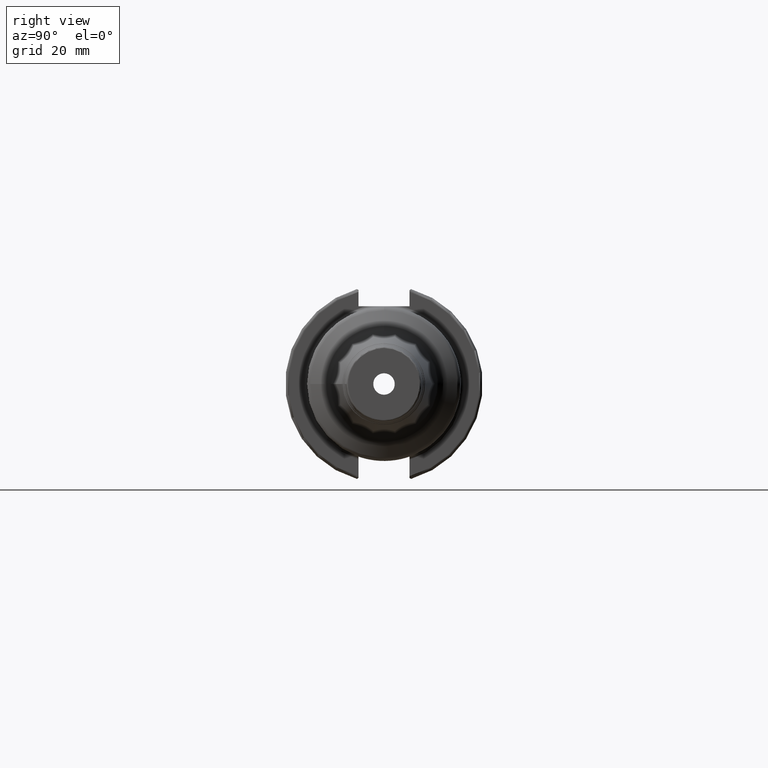
[diagram: clean part render]
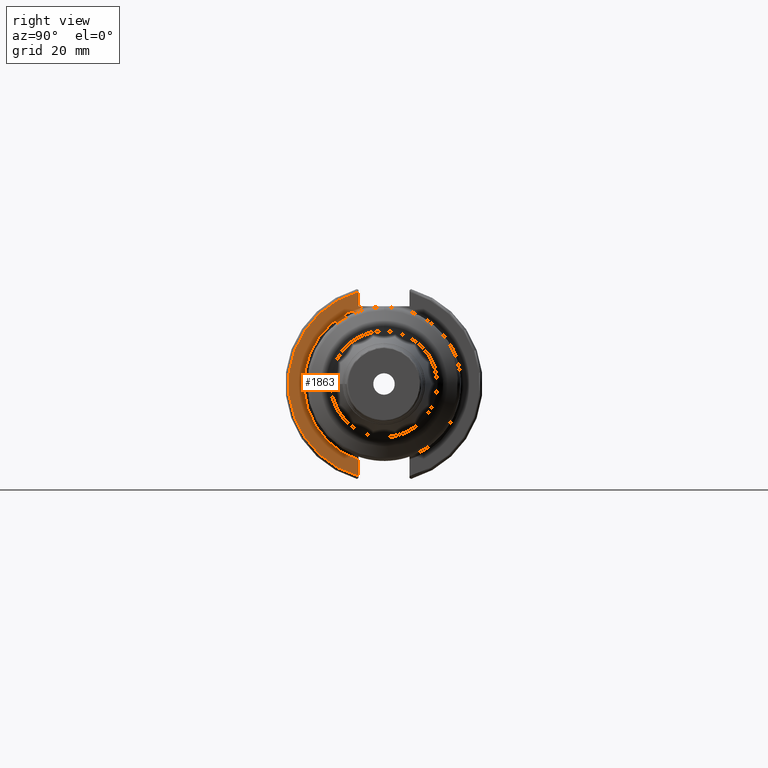
[diagram: same view with one face highlighted and labeled with its STEP entity id]
A machine part, right view. The second image highlights one B-rep face of the part: STEP entity #1863.
In plain terms, the highlighted planar face has unit normal (1, 0, 0).
Its self-contained STEP definition (entity closure, byte-faithful):
#134=PLANE('',#2045);
#177=LINE('',#2994,#272);
#178=LINE('',#2996,#273);
#179=LINE('',#2999,#274);
#272=VECTOR('',#2384,10.);
#273=VECTOR('',#2385,10.);
#274=VECTOR('',#2388,10.);
#402=FACE_OUTER_BOUND('',#511,.T.);
#511=EDGE_LOOP('',(#1349,#1350,#1351,#1352,#1353));
#660=CIRCLE('',#2041,25.75);
#664=CIRCLE('',#2046,30.75);
#780=VERTEX_POINT('',#2951);
#782=VERTEX_POINT('',#2963);
#787=VERTEX_POINT('',#2993);
#788=VERTEX_POINT('',#2995);
#789=VERTEX_POINT('',#2997);
#994=EDGE_CURVE('',#780,#782,#660,.T.);
#1000=EDGE_CURVE('',#780,#787,#177,.T.);
#1001=EDGE_CURVE('',#787,#788,#178,.T.);
#1002=EDGE_CURVE('',#789,#788,#664,.T.);
#1003=EDGE_CURVE('',#789,#782,#179,.T.);
#1349=ORIENTED_EDGE('',*,*,#994,.F.);
#1350=ORIENTED_EDGE('',*,*,#1000,.T.);
#1351=ORIENTED_EDGE('',*,*,#1001,.T.);
#1352=ORIENTED_EDGE('',*,*,#1002,.F.);
#1353=ORIENTED_EDGE('',*,*,#1003,.T.);
#1863=ADVANCED_FACE('',(#402),#134,.T.);
#2041=AXIS2_PLACEMENT_3D('',#2964,#2374,#2375);
#2045=AXIS2_PLACEMENT_3D('',#2992,#2382,#2383);
#2046=AXIS2_PLACEMENT_3D('',#2998,#2386,#2387);
#2374=DIRECTION('center_axis',(1.,0.,0.));
#2375=DIRECTION('ref_axis',(0.,6.12323399573677E-17,1.));
#2382=DIRECTION('center_axis',(1.,0.,0.));
#2383=DIRECTION('ref_axis',(0.,0.,-1.));
#2384=DIRECTION('',(0.,-1.,0.));
#2385=DIRECTION('',(0.,0.,1.));
#2386=DIRECTION('center_axis',(-1.,0.,0.));
#2387=DIRECTION('ref_axis',(0.,-1.,1.60812264967664E-16));
#2388=DIRECTION('',(0.,0.,1.));
#2951=CARTESIAN_POINT('',(19.05,-6.16948133962652,25.));
#2963=CARTESIAN_POINT('',(19.05,-8.19,-24.4128326910254));
#2964=CARTESIAN_POINT('Origin',(19.05,0.,0.));
#2992=CARTESIAN_POINT('Origin',(19.05,0.,0.));
#2993=CARTESIAN_POINT('',(19.05,-8.19,25.));
#2994=CARTESIAN_POINT('',(19.05,0.,25.));
#2995=CARTESIAN_POINT('',(19.05,-8.19,29.6392712461019));
#2996=CARTESIAN_POINT('',(19.05,-8.19,12.5));
#2997=CARTESIAN_POINT('',(19.05,-8.19,-29.6392712461019));
#2998=CARTESIAN_POINT('Origin',(19.05,0.,0.));
#2999=CARTESIAN_POINT('',(19.05,-8.19,-11.3));